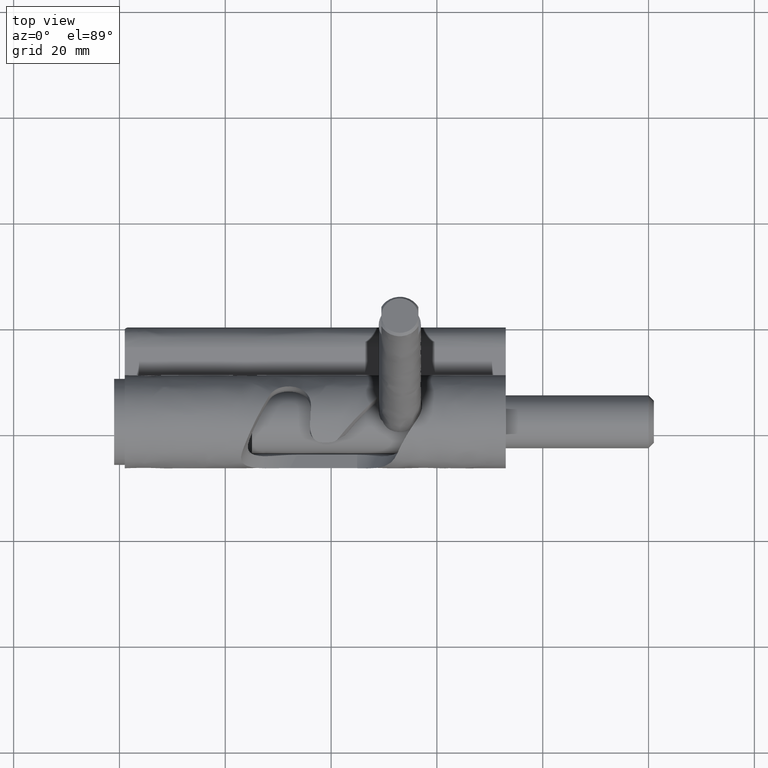
[diagram: clean part render]
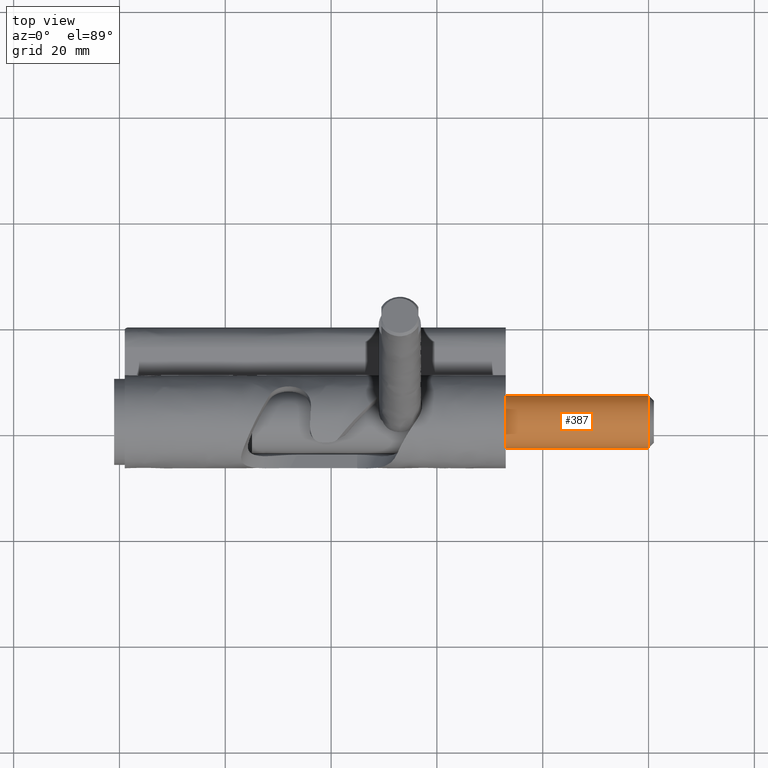
[diagram: same view with one face highlighted and labeled with its STEP entity id]
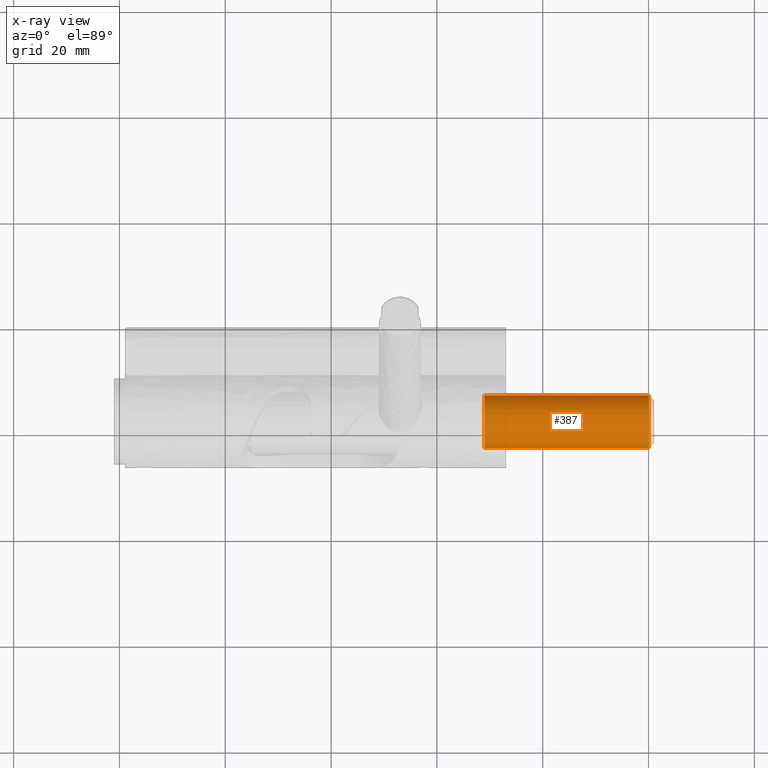
[diagram: x-ray of the same camera — body ghosted, the highlighted face saturated]
A machine part, top view. The second image highlights one B-rep face of the part: STEP entity #387.
The next image is the same camera in x-ray: the body ghosted, the highlighted face saturated — about 0% of this face is hidden behind the body in this view.
In plain terms, the highlighted face is a freeform B-spline surface patch.
Its self-contained STEP definition (entity closure, byte-faithful):
#150=CARTESIAN_POINT('',(40.0,-13.034952368188980,22.590171173344530));
#151=VERTEX_POINT('',#150);
#167=CARTESIAN_POINT('',(40.0,-18.0,26.999999999999911));
#168=VERTEX_POINT('',#167);
#169=CARTESIAN_POINT('',(40.0,-18.0,26.999999999999911));
#170=CARTESIAN_POINT('',(40.000000000000007,-13.559127370352673,26.999999999999904));
#171=CARTESIAN_POINT('',(39.999999999999993,-13.034952368188984,22.590171173344537));
#179=(BOUNDED_CURVE()B_SPLINE_CURVE(2,(#169,#170,#171),.UNSPECIFIED.,.F.,.U.)B_SPLINE_CURVE_WITH_KNOTS((3,3),(0.500000000000000,0.729562473511509),.UNSPECIFIED.)CURVE()GEOMETRIC_REPRESENTATION_ITEM()RATIONAL_B_SPLINE_CURVE((1.0,0.731050832857745,0.956026754179780))REPRESENTATION_ITEM(''));
#180=EDGE_CURVE('',#168,#151,#179,.T.);
#182=CARTESIAN_POINT('',(40.0,-22.990673992100682,21.694757302185678));
#183=VERTEX_POINT('',#182);
#184=CARTESIAN_POINT('',(40.000000000000007,-22.990673992100671,21.694757302185678));
#185=CARTESIAN_POINT('',(40.0,-22.999999999999908,21.847236183366626));
#186=CARTESIAN_POINT('',(40.0,-22.999999999999911,22.0));
#187=CARTESIAN_POINT('',(39.999999999999993,-22.999999999999908,26.999999999999911));
#188=CARTESIAN_POINT('',(40.0,-18.0,26.999999999999911));
#196=(BOUNDED_CURVE()B_SPLINE_CURVE(2,(#184,#185,#186,#187,#188),.UNSPECIFIED.,.F.,.U.)B_SPLINE_CURVE_WITH_KNOTS((3,2,3),(0.239332962232285,0.250000000000000,0.500000000000000),.UNSPECIFIED.)CURVE()GEOMETRIC_REPRESENTATION_ITEM()RATIONAL_B_SPLINE_CURVE((0.976072041652448,0.987502787892037,1.0,0.707106781186548,1.0))REPRESENTATION_ITEM(''));
#197=EDGE_CURVE('',#183,#168,#196,.T.);
#286=CARTESIAN_POINT('',(9.000000000000197,-22.990673992100682,21.694757302185678));
#287=VERTEX_POINT('',#286);
#288=CARTESIAN_POINT('',(40.0,-22.990673992100682,21.694757302185678));
#289=CARTESIAN_POINT('',(9.000000000000197,-22.990673992100682,21.694757302185678));
#290=QUASI_UNIFORM_CURVE('',1,(#288,#289),.UNSPECIFIED.,.F.,.U.);
#291=EDGE_CURVE('',#183,#287,#290,.T.);
#308=CARTESIAN_POINT('',(9.000000000000199,-13.034952368188980,22.590171173344530));
#309=VERTEX_POINT('',#308);
#325=CARTESIAN_POINT('',(40.0,-13.034952368188980,22.590171173344530));
#326=CARTESIAN_POINT('',(9.000000000000199,-13.034952368188980,22.590171173344530));
#327=QUASI_UNIFORM_CURVE('',1,(#325,#326),.UNSPECIFIED.,.F.,.U.);
#328=EDGE_CURVE('',#151,#309,#327,.T.);
#333=CARTESIAN_POINT('',(40.775000000000013,-22.990673992109240,21.694757302325719));
#334=CARTESIAN_POINT('',(40.775000000000006,-23.295916689783525,26.685431294434959));
#335=CARTESIAN_POINT('',(40.775000000000013,-18.305242697674281,26.990673992109240));
#336=CARTESIAN_POINT('',(40.774999999999999,-13.592282545802574,27.278930983662544));
#337=CARTESIAN_POINT('',(40.775000000000006,-13.034952368181765,22.590171173283792));
#338=CARTESIAN_POINT('',(8.205625000000204,-22.990673992109240,21.694757302325719));
#339=CARTESIAN_POINT('',(8.205625000000204,-23.295916689783525,26.685431294434959));
#340=CARTESIAN_POINT('',(8.205625000000204,-18.305242697674281,26.990673992109240));
#341=CARTESIAN_POINT('',(8.205625000000204,-13.592282545802574,27.278930983662544));
#342=CARTESIAN_POINT('',(8.205625000000206,-13.034952368181765,22.590171173283792));
#350=(BOUNDED_SURFACE()B_SPLINE_SURFACE(2,1,((#333,#338),(#334,#339),(#335,#340),(#336,#341),(#337,#342)),.UNSPECIFIED.,.F.,.F.,.U.)B_SPLINE_SURFACE_WITH_KNOTS((3,2,3),(2,2),(0.0,8.284271247461749,16.237171645025029),(0.0,32.569374999999802),.UNSPECIFIED.)GEOMETRIC_REPRESENTATION_ITEM()RATIONAL_B_SPLINE_SURFACE(((1.0,1.0),(0.707106781186548,0.707106781186548),(1.0,1.0),(0.718822509939086,0.718822509939086),(0.977505800795127,0.977505800795127)))REPRESENTATION_ITEM('')SURFACE());
#351=ORIENTED_EDGE('',*,*,#180,.T.);
#352=ORIENTED_EDGE('',*,*,#328,.T.);
#353=CARTESIAN_POINT('',(9.000000000000199,-18.0,26.999999999999911));
#354=VERTEX_POINT('',#353);
#355=CARTESIAN_POINT('',(9.000000000000199,-18.0,26.999999999999911));
#356=CARTESIAN_POINT('',(9.000000000000199,-13.559127370352673,26.999999999999918));
#357=CARTESIAN_POINT('',(9.000000000000199,-13.034952368188984,22.590171173344537));
#365=(BOUNDED_CURVE()B_SPLINE_CURVE(2,(#355,#356,#357),.UNSPECIFIED.,.F.,.U.)B_SPLINE_CURVE_WITH_KNOTS((3,3),(0.0,0.229562473511509),.UNSPECIFIED.)CURVE()GEOMETRIC_REPRESENTATION_ITEM()RATIONAL_B_SPLINE_CURVE((1.0,0.731050832857745,0.956026754179780))REPRESENTATION_ITEM(''));
#366=EDGE_CURVE('',#354,#309,#365,.T.);
#367=ORIENTED_EDGE('',*,*,#366,.F.);
#368=CARTESIAN_POINT('',(9.000000000000197,-22.990673992100685,21.694757302185682));
#369=CARTESIAN_POINT('',(9.000000000000199,-22.999999999999908,21.847236183366629));
#370=CARTESIAN_POINT('',(9.000000000000199,-22.999999999999911,22.0));
#371=CARTESIAN_POINT('',(9.000000000000199,-22.999999999999908,26.999999999999911));
#372=CARTESIAN_POINT('',(9.000000000000199,-18.0,26.999999999999911));
#380=(BOUNDED_CURVE()B_SPLINE_CURVE(2,(#368,#369,#370,#371,#372),.UNSPECIFIED.,.F.,.U.)B_SPLINE_CURVE_WITH_KNOTS((3,2,3),(0.739332962232285,0.750000000000000,1.0),.UNSPECIFIED.)CURVE()GEOMETRIC_REPRESENTATION_ITEM()RATIONAL_B_SPLINE_CURVE((0.976072041652448,0.987502787892037,1.0,0.707106781186548,1.0))REPRESENTATION_ITEM(''));
#381=EDGE_CURVE('',#287,#354,#380,.T.);
#382=ORIENTED_EDGE('',*,*,#381,.F.);
#383=ORIENTED_EDGE('',*,*,#291,.F.);
#384=ORIENTED_EDGE('',*,*,#197,.T.);
#385=EDGE_LOOP('',(#351,#352,#367,#382,#383,#384));
#386=FACE_OUTER_BOUND('',#385,.T.);
#387=ADVANCED_FACE('',(#386),#350,.T.);